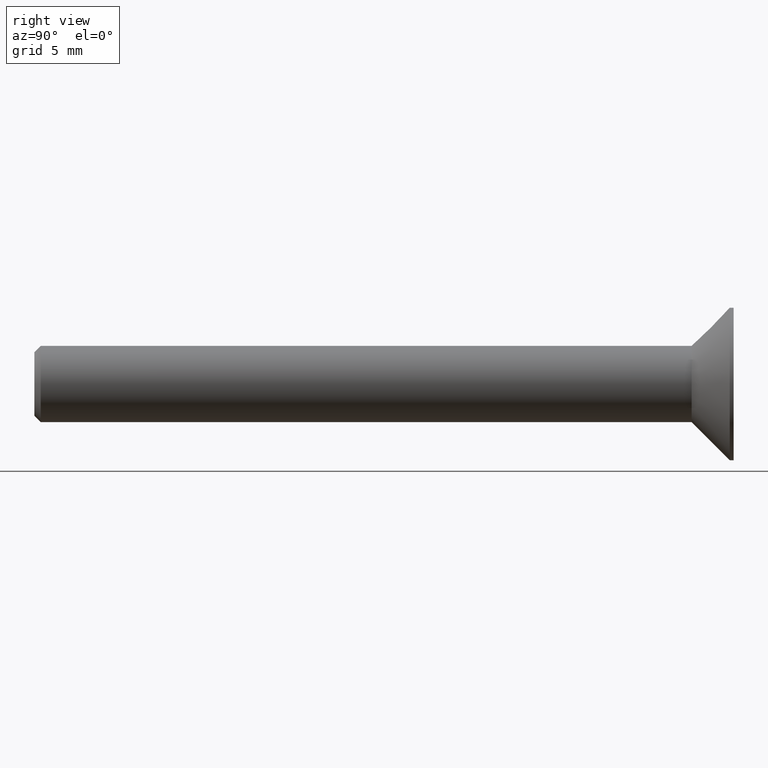
[diagram: clean part render]
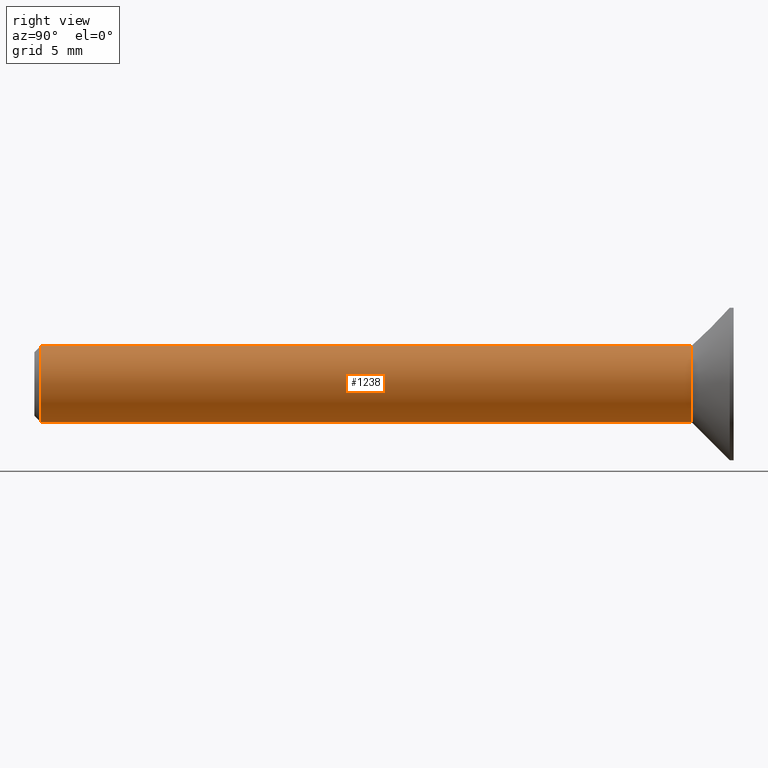
[diagram: same view with one face highlighted and labeled with its STEP entity id]
A machine part, right view. The second image highlights one B-rep face of the part: STEP entity #1238.
In plain terms, the highlighted cylindrical surface (bore or boss wall) has radius 3 mm, axis along (-0, -1, -0).
Its self-contained STEP definition (entity closure, byte-faithful):
#482 = CARTESIAN_POINT ( 'NONE',  ( 0.000000000000000000, -27.50000000000000000, 0.000000000000000000 ) ) ;
#876 = VERTEX_POINT ( 'NONE', #3048 ) ;
#1238 = ADVANCED_FACE ( 'NONE', ( #7579, #13213 ), #2580, .T. ) ;
#1572 = AXIS2_PLACEMENT_3D ( 'NONE', #6823, #2065, #11691 ) ;
#1825 = DIRECTION ( 'NONE',  ( 0.000000000000000000, 0.000000000000000000, -1.000000000000000000 ) ) ;
#2065 = DIRECTION ( 'NONE',  ( -0.000000000000000000, -1.000000000000000000, -0.000000000000000000 ) ) ;
#2580 = CYLINDRICAL_SURFACE ( 'NONE', #4834, 3.000000000000000888 ) ;
#2906 = EDGE_LOOP ( 'NONE', ( #13571 ) ) ;
#3048 = CARTESIAN_POINT ( 'NONE',  ( 0.000000000000000000, -26.99999999999999645, -3.000000000000000888 ) ) ;
#4056 = CIRCLE ( 'NONE', #9854, 3.000000000000000888 ) ;
#4834 = AXIS2_PLACEMENT_3D ( 'NONE', #482, #13788, #1825 ) ;
#5561 = EDGE_CURVE ( 'NONE', #14872, #14872, #12182, .T. ) ;
#6510 = CARTESIAN_POINT ( 'NONE',  ( 0.000000000000000000, 24.19999999999999574, -2.999999999999997780 ) ) ;
#6823 = CARTESIAN_POINT ( 'NONE',  ( 0.000000000000000000, 24.19999999999999574, 0.000000000000000000 ) ) ;
#7579 = FACE_OUTER_BOUND ( 'NONE', #2906, .T. ) ;
#8539 = DIRECTION ( 'NONE',  ( 0.000000000000000000, 1.000000000000000000, 0.000000000000000000 ) ) ;
#9854 = AXIS2_PLACEMENT_3D ( 'NONE', #13357, #8539, #13212 ) ;
#11665 = EDGE_CURVE ( 'NONE', #876, #876, #4056, .T. ) ;
#11691 = DIRECTION ( 'NONE',  ( 0.000000000000000000, 0.000000000000000000, -1.000000000000000000 ) ) ;
#12182 = CIRCLE ( 'NONE', #1572, 2.999999999999997780 ) ;
#12398 = ORIENTED_EDGE ( 'NONE', *, *, #5561, .T. ) ;
#13212 = DIRECTION ( 'NONE',  ( 0.000000000000000000, 0.000000000000000000, -1.000000000000000000 ) ) ;
#13213 = FACE_OUTER_BOUND ( 'NONE', #13407, .T. ) ;
#13357 = CARTESIAN_POINT ( 'NONE',  ( 0.000000000000000000, -26.99999999999999645, 0.000000000000000000 ) ) ;
#13407 = EDGE_LOOP ( 'NONE', ( #12398 ) ) ;
#13571 = ORIENTED_EDGE ( 'NONE', *, *, #11665, .T. ) ;
#13788 = DIRECTION ( 'NONE',  ( -0.000000000000000000, -1.000000000000000000, -0.000000000000000000 ) ) ;
#14872 = VERTEX_POINT ( 'NONE', #6510 ) ;